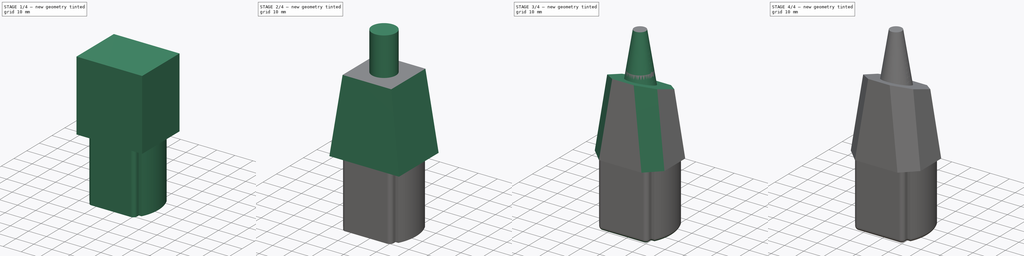
[diagram: build sequence overview — one tinted view per stage of 4, left to right]
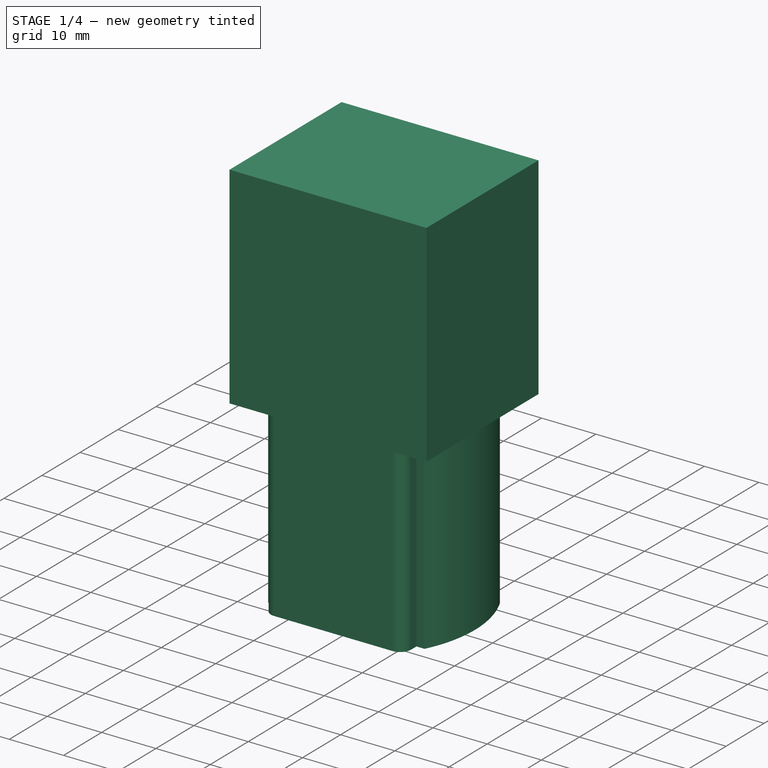
[diagram: stage 1 of 4 — iso view after this stage's code; geometry added in this stage tinted green]
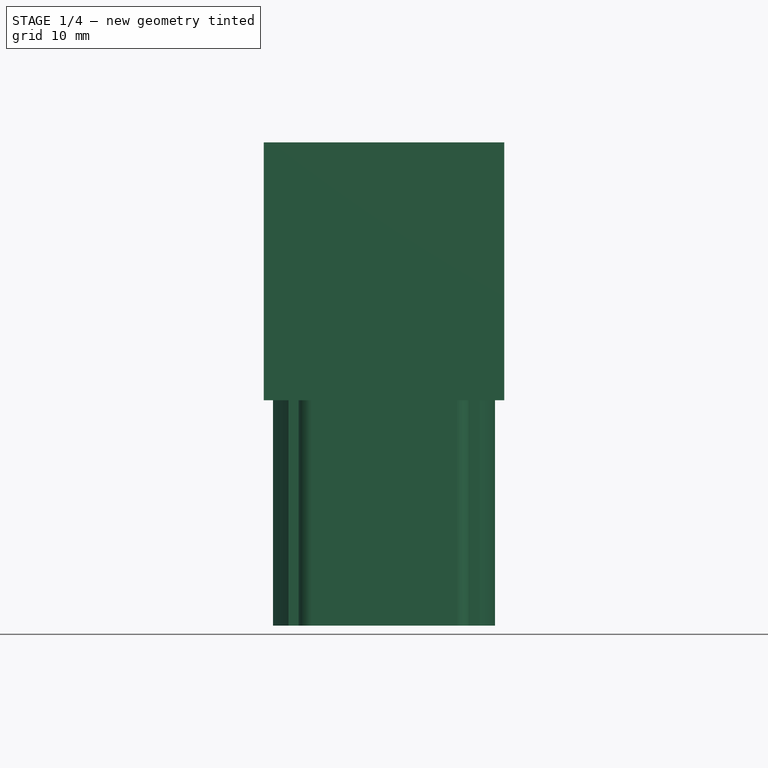
[diagram: stage 1 of 4 — front view after this stage's code; geometry added in this stage tinted green]
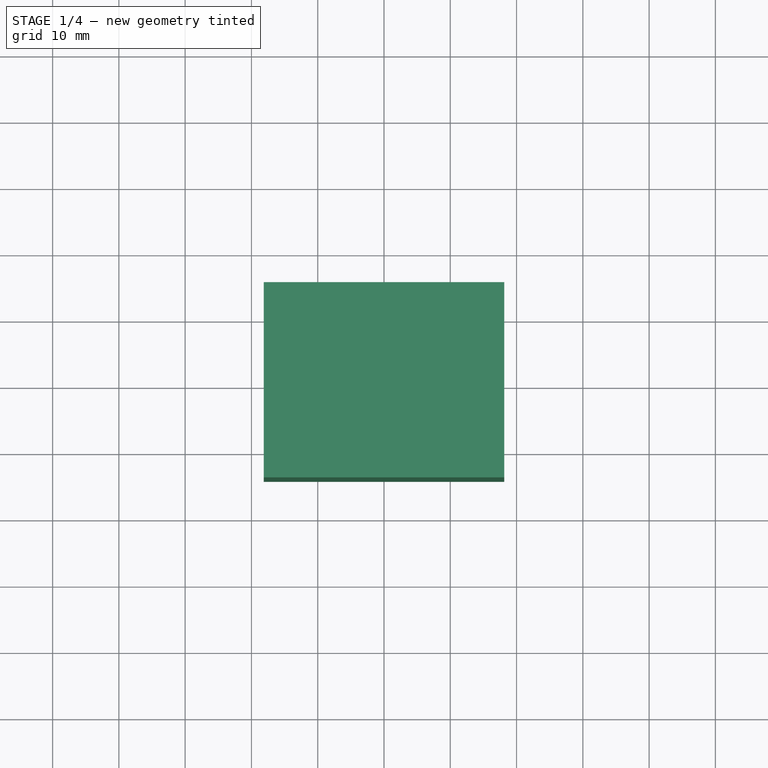
[diagram: stage 1 of 4 — top view after this stage's code; geometry added in this stage tinted green]
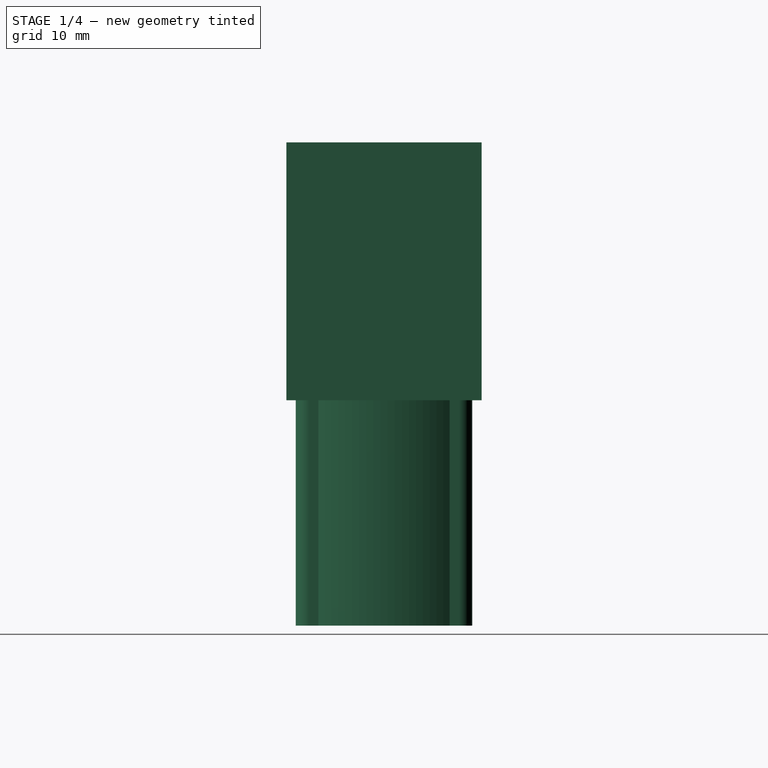
[diagram: stage 1 of 4 — right view after this stage's code; geometry added in this stage tinted green]
FCSTD DOCUMENT  (FreeCAD 0.16RUnknown)
Label: telescope_foot
License: All rights reserved
LicenseURL: http://en.wikipedia.org/wiki/All_rights_reserved
objects: Sketcher::SketchObject×5, PartDesign::Draft×5, PartDesign::Pad×3, PartDesign::Fillet×2, PartDesign::Pocket×2, PartDesign::Chamfer×1
note: 23 computed .brp shape members not serialized (recipe doc carries the construction recipe); baked Part::Feature solids carry a one-line shape summary decoded from their .brp

FEATURE [Sketcher::SketchObject] Sketch
  sketch-geometry (28):
    g0: LineSegment StartX=-12.9 StartY=-13.31 StartZ=0 EndX=12.9 EndY=-13.31 EndZ=0
    g1: LineSegment [constr] StartX=12.9 StartY=-13.31 StartZ=0 EndX=12.9 EndY=13.31 EndZ=0
    g2: LineSegment StartX=12.9 StartY=13.31 StartZ=0 EndX=-12.9 EndY=13.31 EndZ=0
    g3: LineSegment [constr] StartX=-12.9 StartY=13.31 StartZ=0 EndX=-12.9 EndY=-13.31 EndZ=0
    g4: LineSegment [constr] StartX=-16.75 StartY=9.9 StartZ=0 EndX=16.75 EndY=9.9 EndZ=0
    g5: LineSegment [constr] StartX=16.75 StartY=9.9 StartZ=0 EndX=16.75 EndY=-9.9 EndZ=0
    g6: LineSegment [constr] StartX=16.75 StartY=-9.9 StartZ=0 EndX=-16.75 EndY=-9.9 EndZ=0
    g7: LineSegment [constr] StartX=-16.75 StartY=-9.9 StartZ=0 EndX=-16.75 EndY=9.9 EndZ=0
    g8: LineSegment [constr] StartX=16.75 StartY=9.9 StartZ=0 EndX=-16.75 EndY=-9.9 EndZ=0
    g9: LineSegment [constr] StartX=-16.75 StartY=9.9 StartZ=0 EndX=16.75 EndY=-9.9 EndZ=0
    g10: GeomPoint [constr] X=0 Y=0 Z=0
    g11: LineSegment [constr] StartX=-12.9 StartY=13.31 StartZ=0 EndX=12.9 EndY=-13.31 EndZ=0
    g12: LineSegment [constr] StartX=-12.9 StartY=-13.31 StartZ=0 EndX=12.9 EndY=13.31 EndZ=0
    g13: GeomPoint [constr] X=0 Y=0 Z=0
    g14: GeomPoint [constr] X=-12.9 Y=9.9 Z=0
    g15: GeomPoint [constr] X=12.9 Y=9.9 Z=0
    g16: GeomPoint [constr] X=12.9 Y=-9.9 Z=0
    g17: GeomPoint [constr] X=-12.9 Y=-9.9 Z=0
    g18: LineSegment StartX=-12.9 StartY=9.9 StartZ=0 EndX=-14.4 EndY=9.9 EndZ=0
    g19: LineSegment StartX=-12.9 StartY=-9.9 StartZ=0 EndX=-14.4 EndY=-9.9 EndZ=0
    g20: LineSegment StartX=12.9 StartY=9.9 StartZ=0 EndX=14.4 EndY=9.9 EndZ=0
    g21: LineSegment StartX=12.9 StartY=-9.9 StartZ=0 EndX=14.4 EndY=-9.9 EndZ=0
    g22: ArcOfCircle CenterX=5.27819 CenterY=0 CenterZ=0 NormalX=0 NormalY=0 NormalZ=1 Radius=22.0282 StartAngle=2.67547 EndAngle=3.60771
    g23: ArcOfCircle CenterX=-5.27819 CenterY=0 CenterZ=0 NormalX=0 NormalY=0 NormalZ=1 Radius=22.0282 StartAngle=5.81706 EndAngle=6.74931
    g24: LineSegment StartX=-12.9 StartY=13.31 StartZ=0 EndX=-12.9 EndY=9.9 EndZ=0
    g25: LineSegment StartX=-12.9 StartY=-13.31 StartZ=0 EndX=-12.9 EndY=-9.9 EndZ=0
    g26: LineSegment StartX=12.9 StartY=-13.31 StartZ=0 EndX=12.9 EndY=-9.9 EndZ=0
    g27: LineSegment StartX=12.9 StartY=9.9 StartZ=0 EndX=12.9 EndY=13.31 EndZ=0
  constraints (68):
    c: Coincident(g0,g1)
    c: Coincident(g1,g2)
    c: Coincident(g2,g3)
    c: Coincident(g3,g0)
    c: Horizontal(g0)
    c: Horizontal(g2)
    c: Distance(g2) = 25.8
    c: Distance(g3) = 26.62
    c: Coincident(g4,g5)
    c: Coincident(g5,g6)
    c: Coincident(g6,g7)
    c: Coincident(g7,g4)
    c: Horizontal(g6)
    c: Vertical(g5)
    c: Vertical(g7)
    c: Distance(g4) = 33.5
    c: Distance(g5) = 19.8
    c: Coincident(g8,g4)
    c: Coincident(g8,g6)
    c: Coincident(g9,g4)
    c: Coincident(g9,g5)
    c: PointOnObject(g10,g8)
    c: PointOnObject(g10,g9)
    c: Coincident(g11,g2)
    c: Coincident(g11,g0)
    c: Coincident(g12,g0)
    c: Coincident(g12,g1)
    c: PointOnObject(g13,g12)
    c: PointOnObject(g13,g11)
    c: Coincident(g13,g-1)
    c: Coincident(g10,g-1)
    c: PointOnObject(g14,g4)
    c: PointOnObject(g14,g3)
    c: PointOnObject(g17,g6)
    c: PointOnObject(g17,g3)
    c: PointOnObject(g16,g6)
    c: PointOnObject(g16,g1)
    c: PointOnObject(g15,g4)
    c: PointOnObject(g15,g1)
    c: Coincident(g19,g17)
    c: Coincident(g20,g15)
    c: Coincident(g21,g16)
    c: Horizontal(g20)
    c: Horizontal(g21)
    c: Horizontal(g18)
    c: Horizontal(g19)
    c: Distance(g21) = 1.5
    c: Distance(g20) = 1.5
    c: Distance(g19) = 1.5
    c: Distance(g18) = 1.5
    c: PointOnObject(g22,g-1)
    c: Coincident(g22,g19)
    c: Coincident(g22,g18)
    c: Coincident(g18,g14)
    c: Tangent(g22,g7)
    c: PointOnObject(g23,g-1)
    c: Coincident(g23,g21)
    c: Coincident(g23,g20)
    c: Tangent(g23,g5)
    c: Coincident(g24,g2)
    c: Coincident(g24,g14)
    c: Vertical(g24)
    c: Coincident(g25,g0)
    c: Coincident(g25,g17)
    c: Coincident(g26,g0)
    c: Coincident(g26,g16)
    c: Coincident(g27,g15)
    c: Coincident(g27,g1)
FEATURE [PartDesign::Pad] Pad
  Length = 34
  Length2 = 100
  Sketch = -> Sketch
  Type = 0
FEATURE [PartDesign::Fillet] Fillet
  Base = -> Pad [Edge5,Edge1,Edge20,Edge23]
  Radius = 2
FEATURE [Sketcher::SketchObject] Sketch001
  Placement = pos=(0,0,34) rot=(0,0,1;0rad)
  Support = -> Fillet [Face5]
  sketch-geometry (6):
    g0: LineSegment StartX=-18.135 StartY=14.73 StartZ=0 EndX=18.135 EndY=14.73 EndZ=0
    g1: LineSegment StartX=18.135 StartY=14.73 StartZ=0 EndX=18.135 EndY=-14.73 EndZ=0
    g2: LineSegment StartX=18.135 StartY=-14.73 StartZ=0 EndX=-18.135 EndY=-14.73 EndZ=0
    g3: LineSegment StartX=-18.135 StartY=-14.73 StartZ=0 EndX=-18.135 EndY=14.73 EndZ=0
    g4: LineSegment [constr] StartX=-18.135 StartY=14.73 StartZ=0 EndX=18.135 EndY=-14.73 EndZ=0
    g5: LineSegment [constr] StartX=-18.135 StartY=-14.73 StartZ=0 EndX=18.135 EndY=14.73 EndZ=0
  constraints (16):
    c: Coincident(g0,g1)
    c: Coincident(g1,g2)
    c: Coincident(g2,g3)
    c: Coincident(g3,g0)
    c: Horizontal(g0)
    c: Horizontal(g2)
    c: Vertical(g1)
    c: Vertical(g3)
    c: Distance(g3) = 29.46
    c: Distance(g0) = 36.27
    c: Coincident(g4,g0)
    c: Coincident(g4,g1)
    c: Coincident(g5,g2)
    c: Coincident(g5,g0)
    c: PointOnObject(g-1,g5)
    c: PointOnObject(g-1,g4)
FEATURE [PartDesign::Pad] Pad001
  Length = 38.91
  Length2 = 100
  Sketch = -> Sketch001
  Type = 0
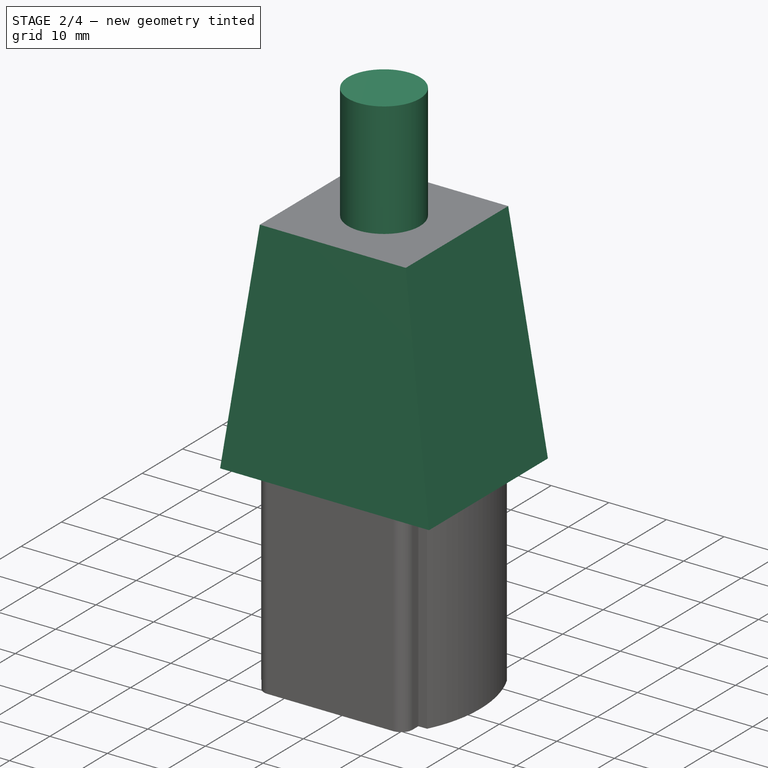
[diagram: stage 2 of 4 — iso view after this stage's code; geometry added in this stage tinted green]
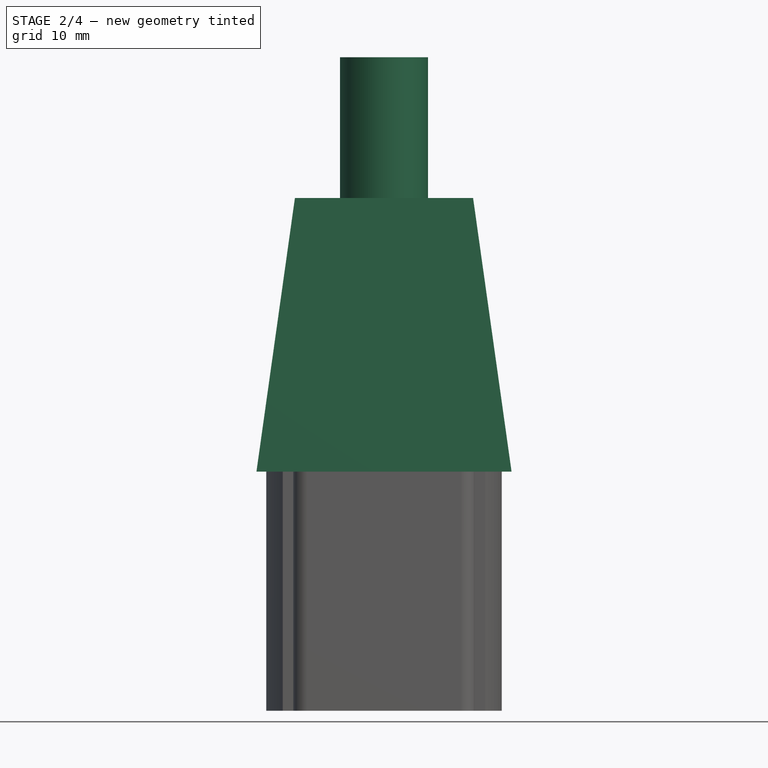
[diagram: stage 2 of 4 — front view after this stage's code; geometry added in this stage tinted green]
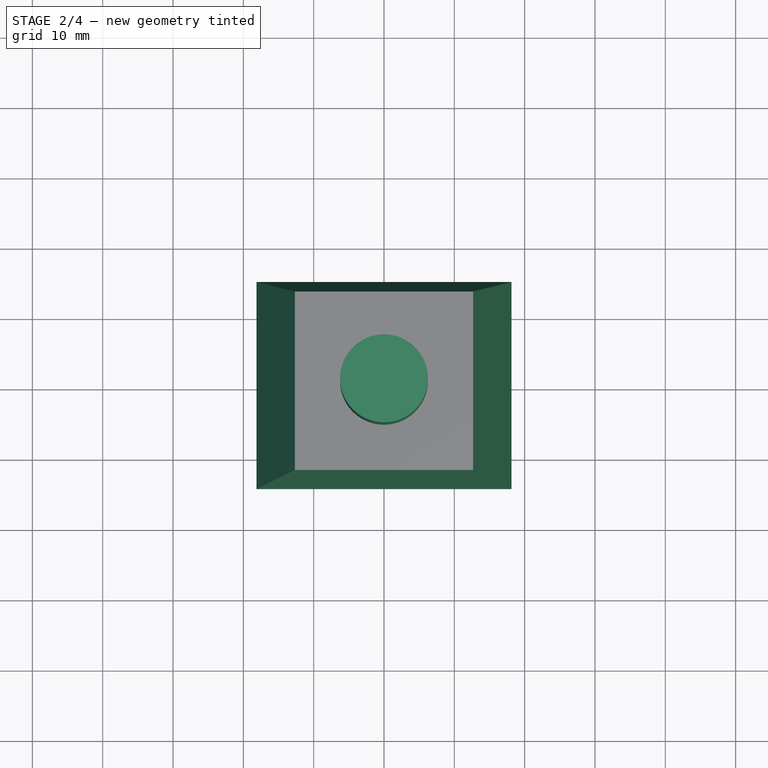
[diagram: stage 2 of 4 — top view after this stage's code; geometry added in this stage tinted green]
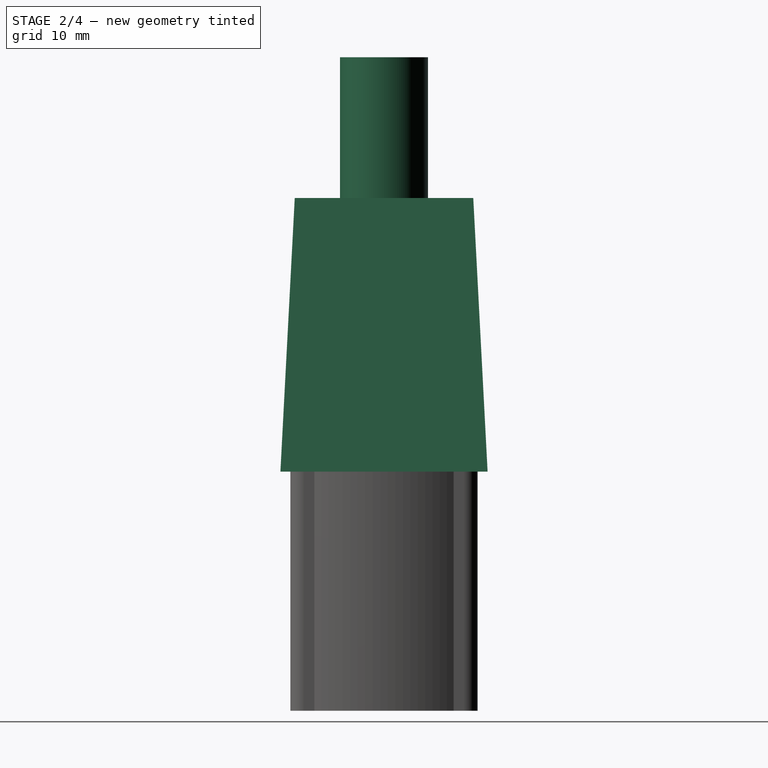
[diagram: stage 2 of 4 — right view after this stage's code; geometry added in this stage tinted green]
FEATURE [PartDesign::Draft] Draft
  Angle = 8
  Base = -> Pad001 [Face3,Face2]
  NeutralPlane = -> Pad001 [Face4]
  Reversed = true
FEATURE [PartDesign::Draft] Draft001
  Angle = 3
  Base = -> Draft [Face1,Face6]
  NeutralPlane = -> Draft [Face4]
  Reversed = true
FEATURE [Sketcher::SketchObject] Sketch002
  Placement = pos=(0,0,72.91) rot=(0,0,1;0rad)
  Support = -> Draft001 [Face5]
  sketch-geometry (1):
    g0: Circle CenterX=0 CenterY=0 CenterZ=0 NormalX=0 NormalY=0 NormalZ=1 Radius=6.25
  constraints (2):
    c: Coincident(g0,g-1)
    c: Radius(g0) = 6.25
FEATURE [PartDesign::Pad] Pad002
  Length = 20
  Length2 = 100
  Sketch = -> Sketch002
  Type = 0
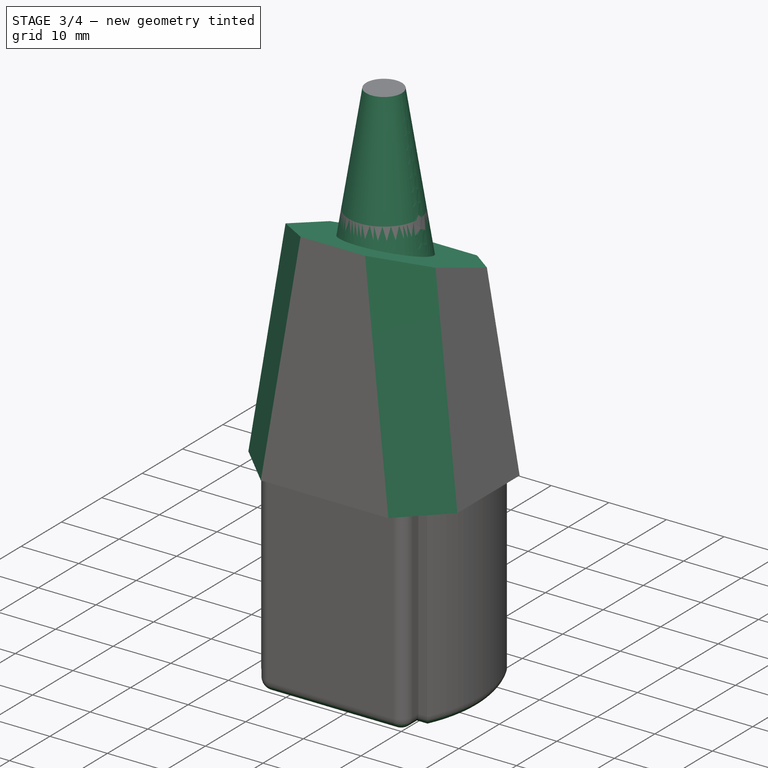
[diagram: stage 3 of 4 — iso view after this stage's code; geometry added in this stage tinted green]
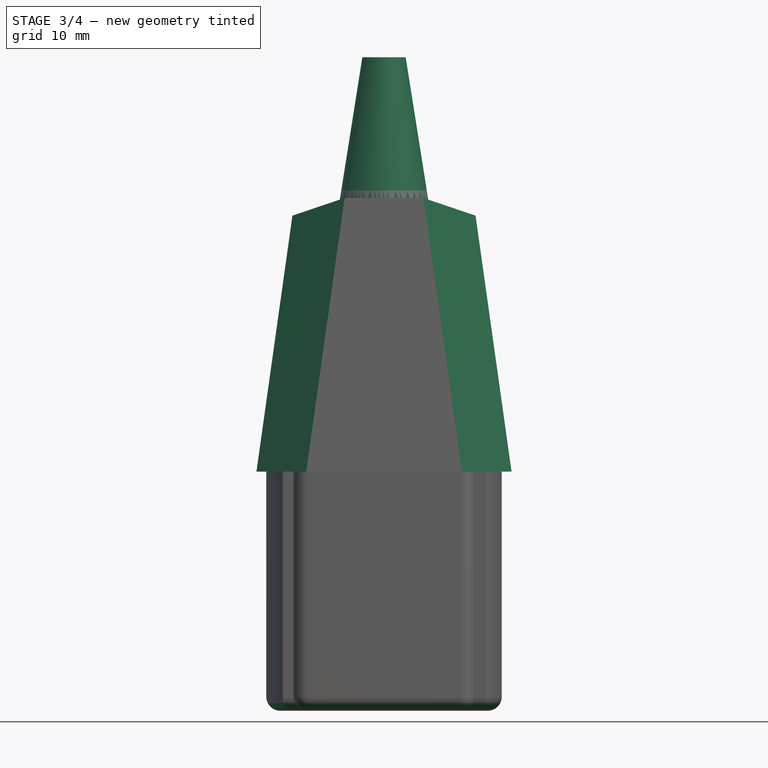
[diagram: stage 3 of 4 — front view after this stage's code; geometry added in this stage tinted green]
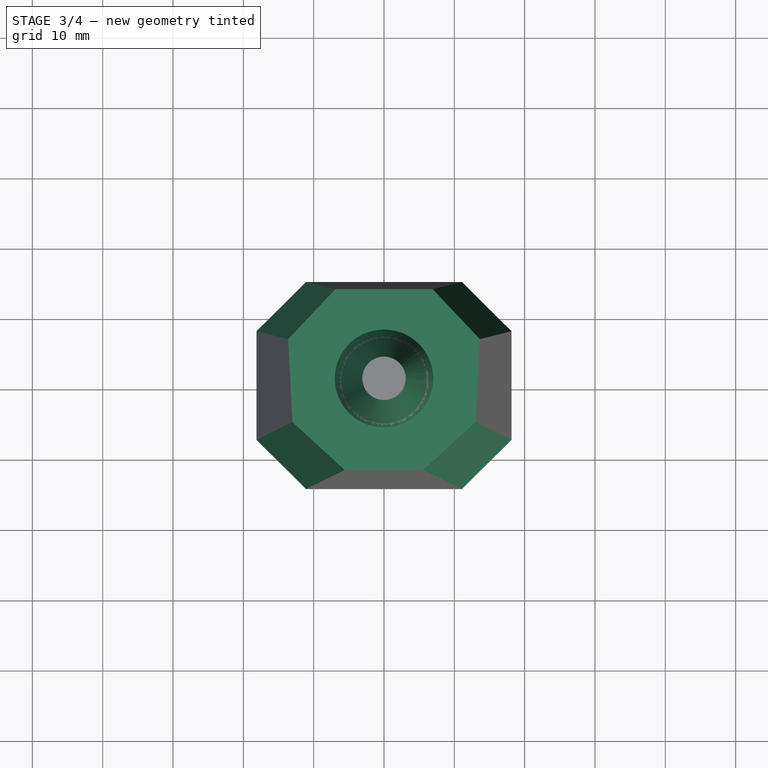
[diagram: stage 3 of 4 — top view after this stage's code; geometry added in this stage tinted green]
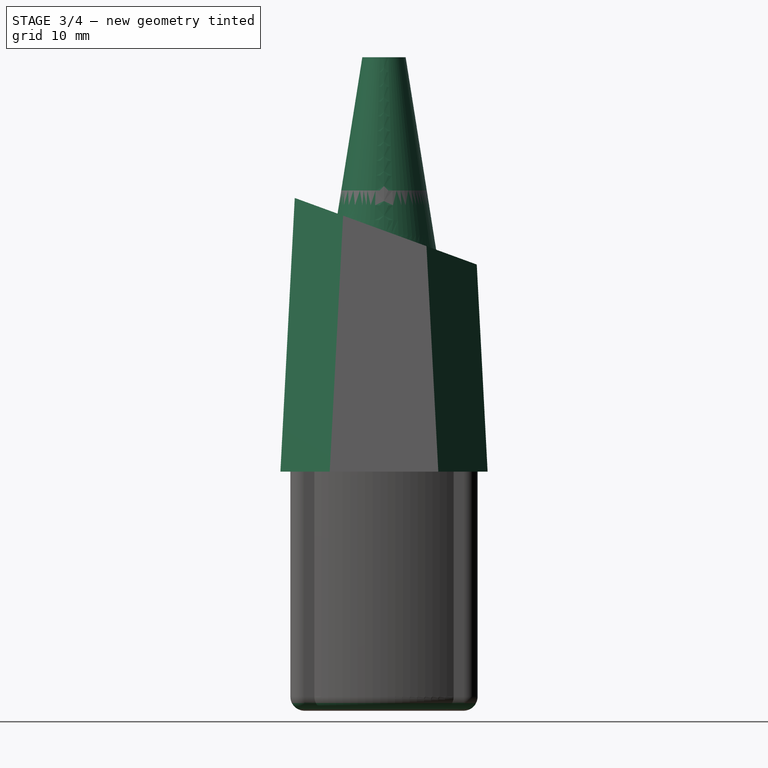
[diagram: stage 3 of 4 — right view after this stage's code; geometry added in this stage tinted green]
FEATURE [PartDesign::Draft] Draft002
  Angle = 9
  Base = -> Pad002 [Face23]
  NeutralPlane = -> Pad002 [Face5]
  Reversed = true
FEATURE [PartDesign::Chamfer] Chamfer
  Base = -> Draft002 [Edge5,Edge8,Edge2,Edge1]
  Size = 7
FEATURE [PartDesign::Draft] Draft003
  Angle = 14
  Base = -> Chamfer [Face5]
  NeutralPlane = -> Chamfer [Face10]
  PullDirection = -> Chamfer [Edge29]
  Reversed = true
FEATURE [PartDesign::Fillet] Fillet001
  Base = -> Draft003 [Edge42,Edge73,Edge45,Edge71,Edge48,Edge69,Edge50,Edge67,Edge51,Edge66,Edge53,Edge64,Edge55,Edge61,Edge57,Edge59]
  Radius = 2
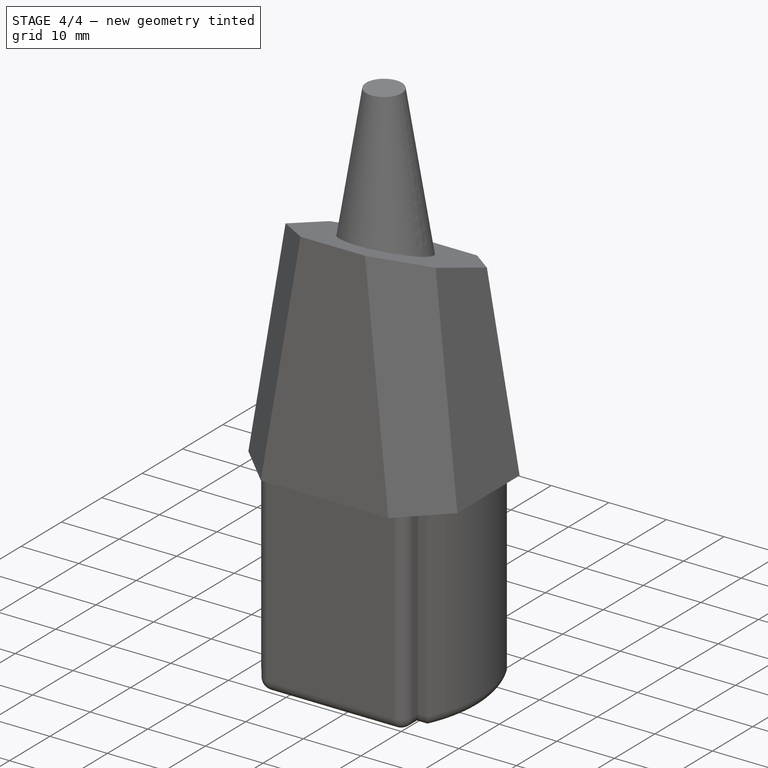
[diagram: stage 4 of 4 — iso view after this stage's code; geometry added in this stage tinted green]
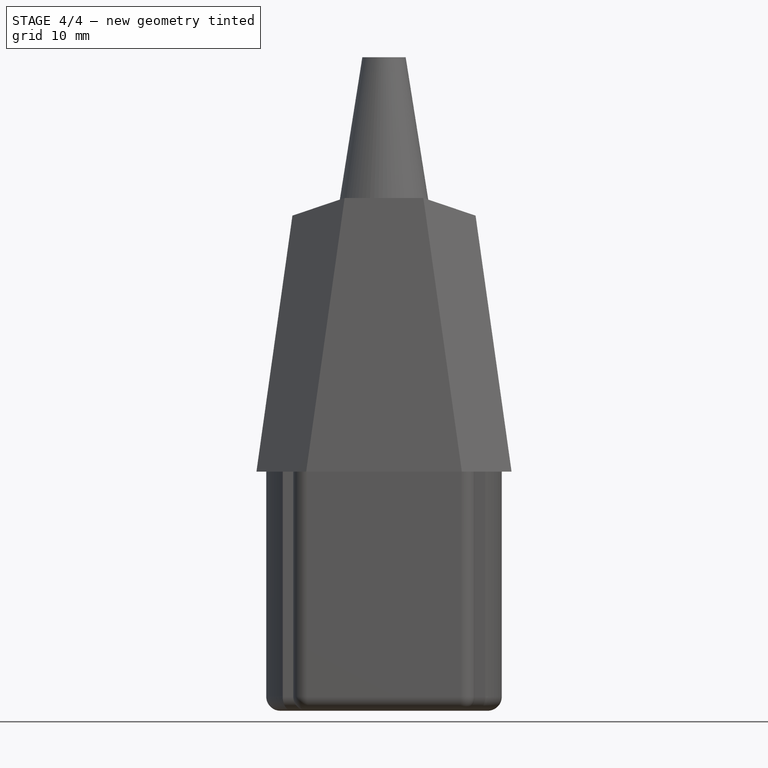
[diagram: stage 4 of 4 — front view after this stage's code; geometry added in this stage tinted green]
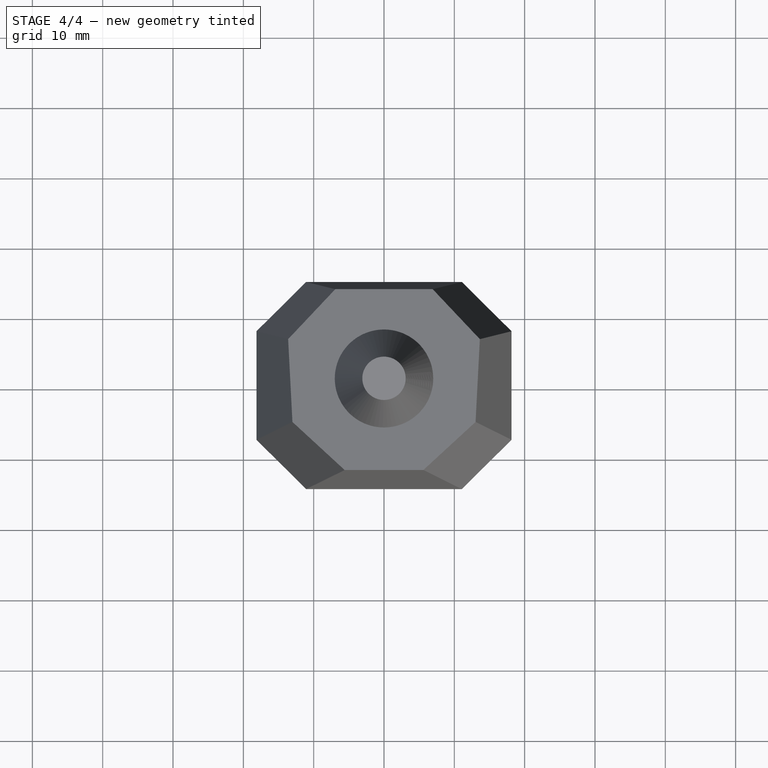
[diagram: stage 4 of 4 — top view after this stage's code; geometry added in this stage tinted green]
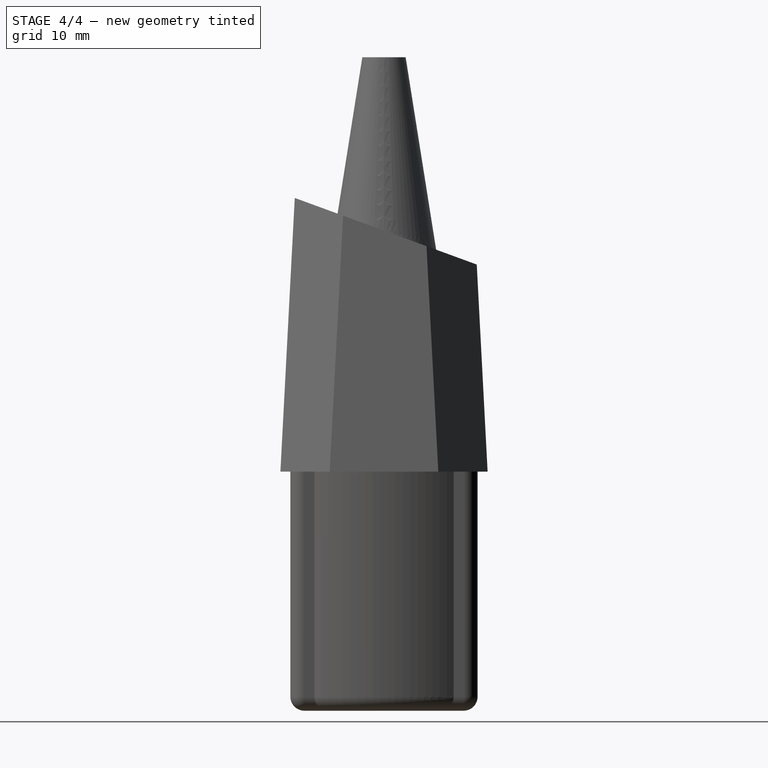
[diagram: stage 4 of 4 — right view after this stage's code; geometry added in this stage tinted green]
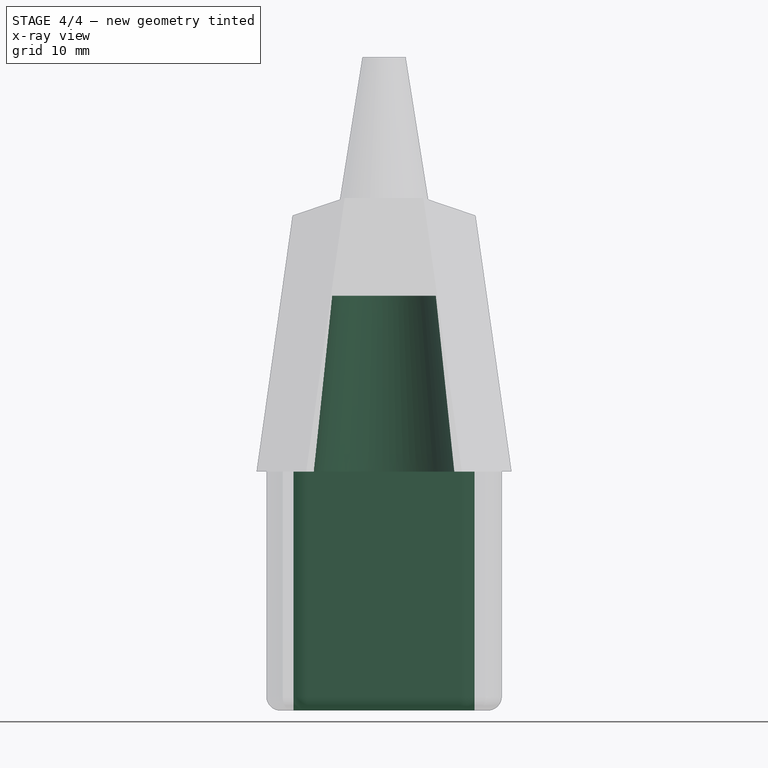
[diagram: stage 4 of 4 — x-ray composite at the front view; earlier geometry ghosted, this stage's added geometry solid]
FEATURE [Sketcher::SketchObject] Sketch003
  Placement = pos=(0,0,0) rot=(1,0,0;3.14159rad)
  Support = -> Fillet001 [Face8]
  sketch-geometry (12):
    g0: LineSegment StartX=-9.40605 StartY=10.2468 StartZ=0 EndX=9.40605 EndY=10.2468 EndZ=0
    g1: LineSegment StartX=9.40605 StartY=10.2468 StartZ=0 EndX=9.40605 EndY=5.93887 EndZ=0
    g2: LineSegment StartX=9.40605 StartY=5.93887 StartZ=0 EndX=12.8627 EndY=5.93887 EndZ=0
    g3: LineSegment StartX=12.8627 StartY=5.93887 StartZ=0 EndX=12.8627 EndY=-5.93887 EndZ=0
    g4: LineSegment StartX=12.8627 StartY=-5.93887 StartZ=0 EndX=9.40605 EndY=-5.93887 EndZ=0
    g5: LineSegment StartX=9.40605 StartY=-5.93887 StartZ=0 EndX=9.40605 EndY=-10.2468 EndZ=0
    g6: LineSegment StartX=9.40605 StartY=-10.2468 StartZ=0 EndX=-9.40605 EndY=-10.2468 EndZ=0
    g7: LineSegment StartX=-9.40605 StartY=-10.2468 StartZ=0 EndX=-9.40605 EndY=-5.93887 EndZ=0
    g8: LineSegment StartX=-9.40605 StartY=-5.93887 StartZ=0 EndX=-12.8627 EndY=-5.93887 EndZ=0
    g9: LineSegment StartX=-12.8627 StartY=-5.93887 StartZ=0 EndX=-12.8627 EndY=5.93887 EndZ=0
    g10: LineSegment StartX=-12.8627 StartY=5.93887 StartZ=0 EndX=-9.40605 EndY=5.93887 EndZ=0
    g11: LineSegment StartX=-9.40605 StartY=5.93887 StartZ=0 EndX=-9.40605 EndY=10.2468 EndZ=0
  constraints (29):
    c: Horizontal(g0)
    c: Coincident(g1,g0)
    c: Vertical(g1)
    c: Coincident(g2,g1)
    c: Horizontal(g2)
    c: Coincident(g3,g2)
    c: Vertical(g3)
    c: Coincident(g4,g3)
    c: Horizontal(g4)
    c: Coincident(g5,g4)
    c: Vertical(g5)
    c: Coincident(g6,g5)
    c: Horizontal(g6)
    c: Coincident(g7,g6)
    c: Vertical(g7)
    c: Coincident(g8,g7)
    c: Horizontal(g8)
    c: Coincident(g9,g8)
    c: Vertical(g9)
    c: Coincident(g10,g9)
    c: Horizontal(g10)
    c: Coincident(g11,g10)
    c: Coincident(g11,g0)
    c: Vertical(g11)
    c: Symmetric(g10,g4,g-1)
    c: Symmetric(g7,g1,g-1)
    c: Symmetric(g4,g1,g-1)
    c: Symmetric(g0,g6,g-1)
    c: Symmetric(g2,g8,g-1)
FEATURE [PartDesign::Pocket] Pocket
  Length = 34
  Sketch = -> Sketch003
  Type = 0
FEATURE [Sketcher::SketchObject] Sketch004
  Placement = pos=(0,0,34) rot=(1,0,0;3.14159rad)
  Support = -> Pocket [Face56]
  sketch-geometry (1):
    g0: Circle CenterX=0 CenterY=0 CenterZ=0 NormalX=0 NormalY=0 NormalZ=1 Radius=10
  constraints (2):
    c: Coincident(g0,g-1)
    c: Radius(g0) = 10
FEATURE [PartDesign::Pocket] Pocket001
  Length = 25
  Sketch = -> Sketch004
  Type = 0
FEATURE [PartDesign::Draft] Draft004
  Angle = 6
  Base = -> Pocket001 [Face58]
  NeutralPlane = -> Pocket001 [Face56]
  PullDirection = -> Pocket001 [Edge145]
  Reversed = true
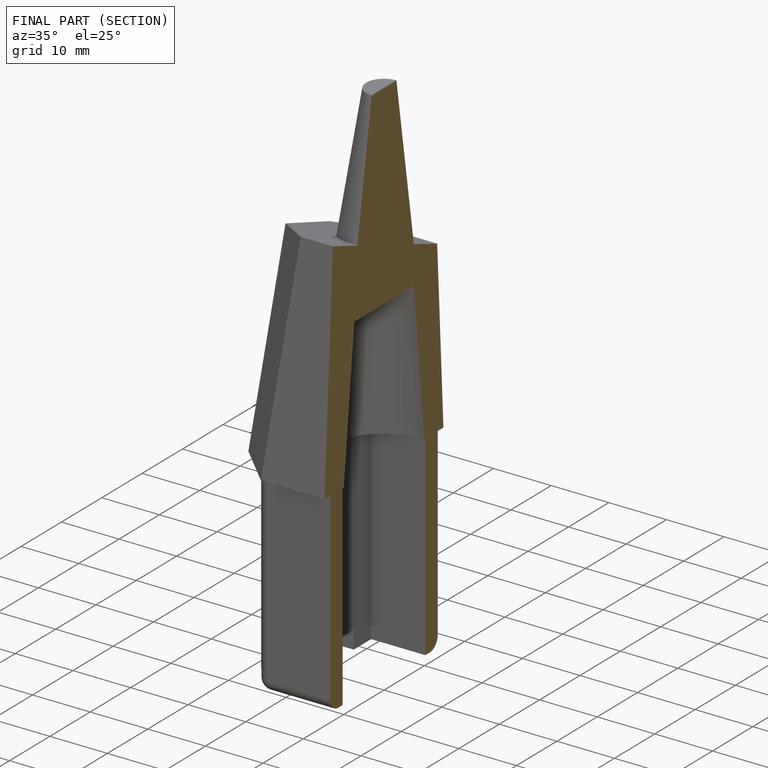
[diagram: finished part — half-section view (interior)]
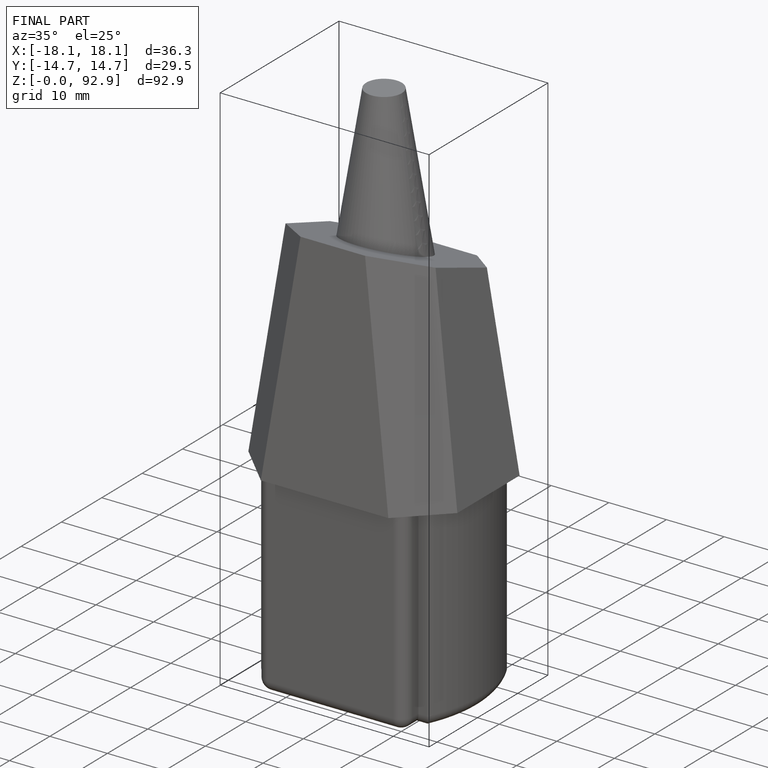
[diagram: finished part — iso view with bounding-box wireframe]
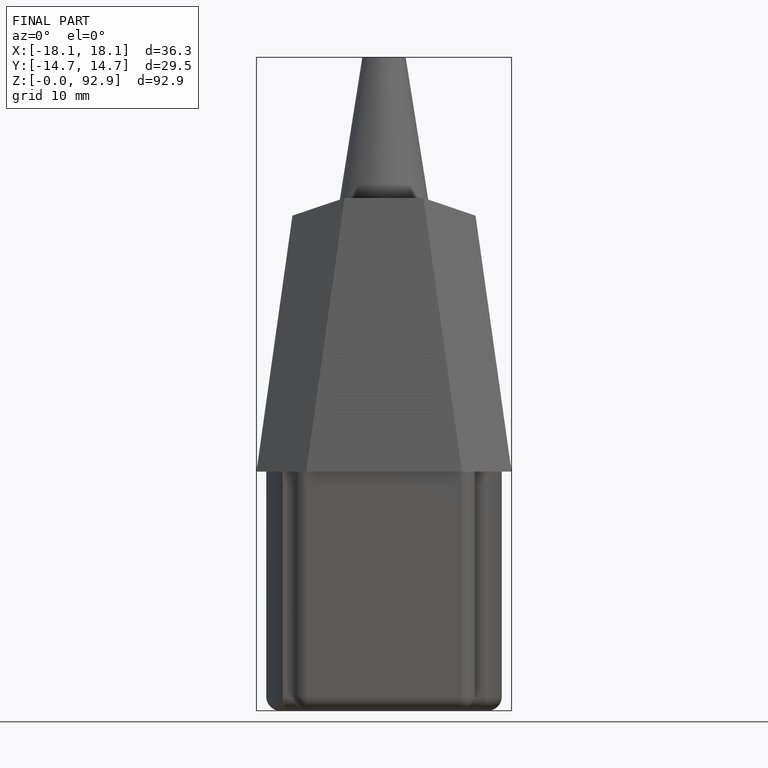
[diagram: finished part — front view with bounding-box wireframe]
